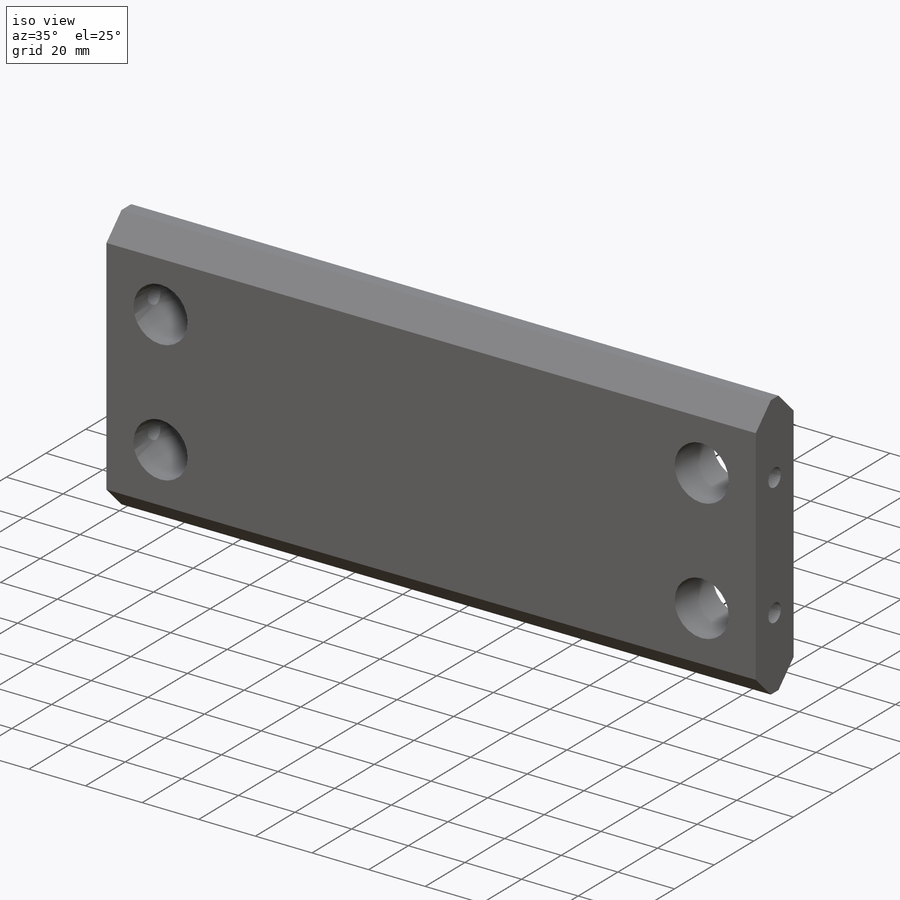
[diagram: iso view]
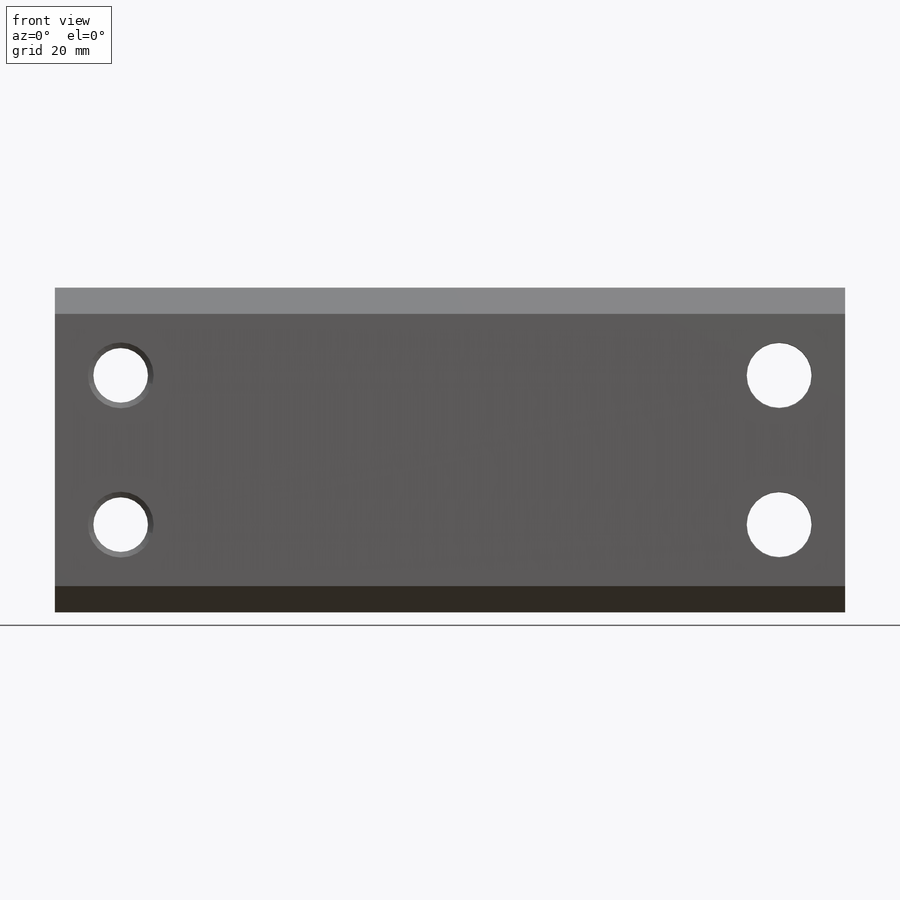
[diagram: front view]
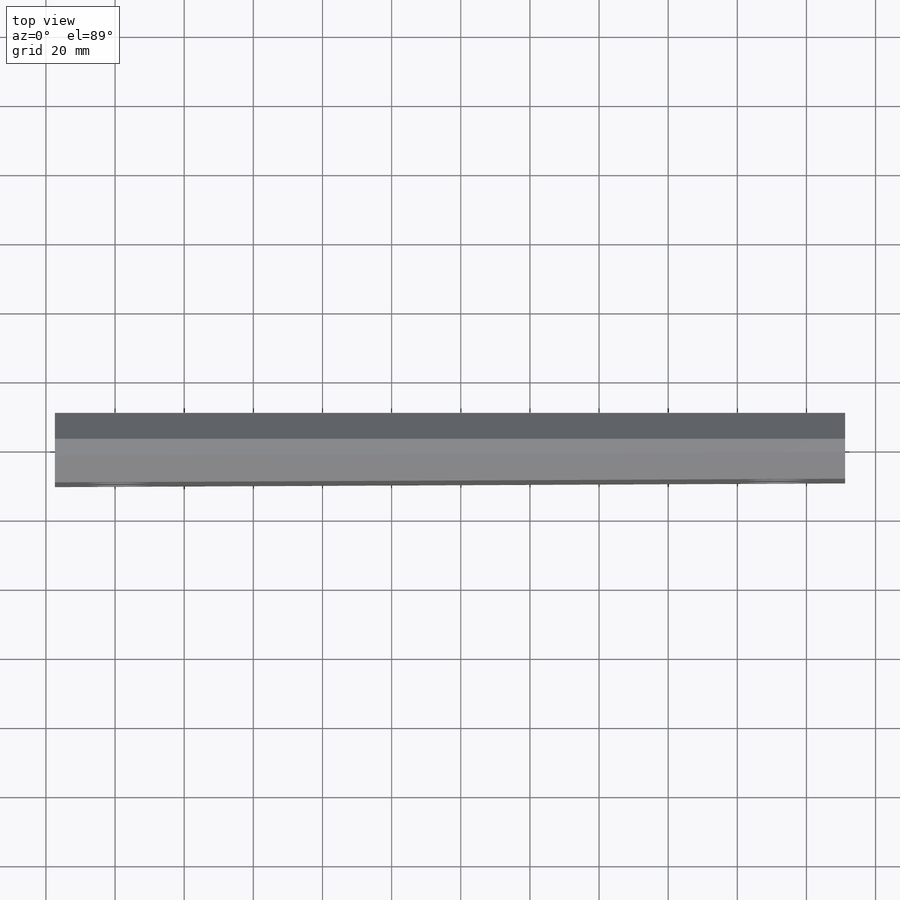
[diagram: top view]
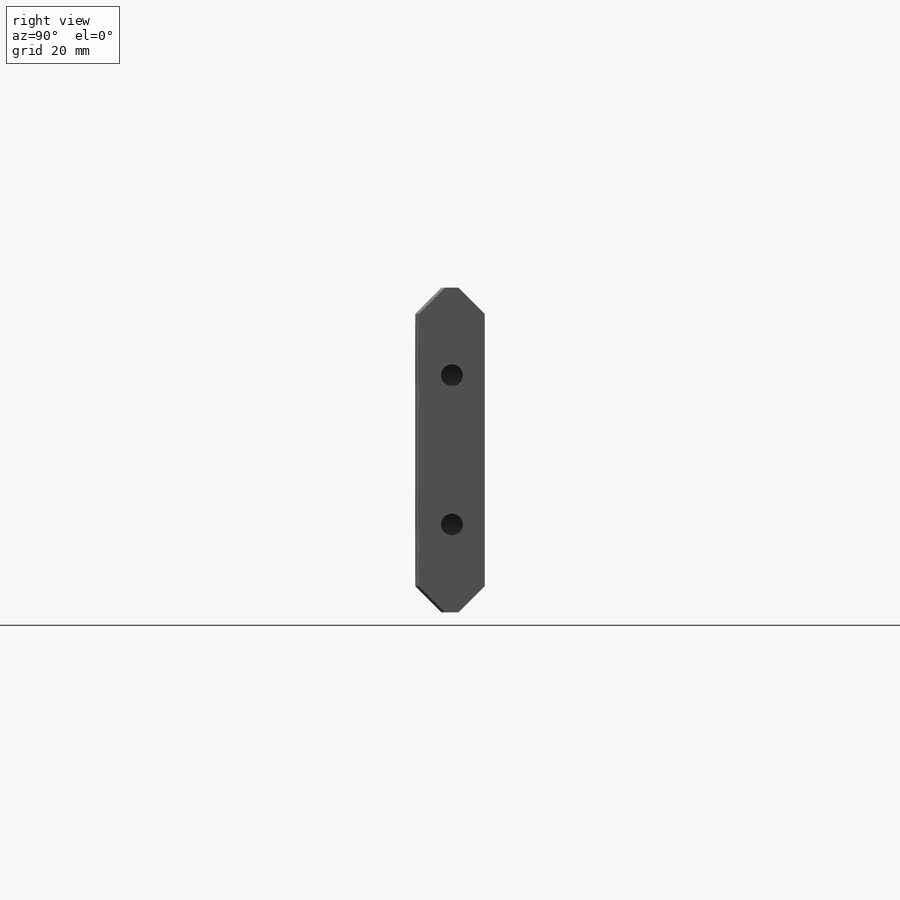
[diagram: right view]
SOLIDWORKS PART (.sldprt)
format: sldprt  version: not decoded by parser v0  size: 451,072 bytes
history: native  units: mm
features: sketch x7, hole x3, material x1, extrude x1, chamfer x1, mirror x1 (+11 scaffold rows collapsed)
feature tree (25):
  scaffold x11  (default folders/planes/origin — collapsed)
  material  "Pine"
  sketch  "3DSketch2"  dims[c1.D1=228.6mm c1.D2=19.05mm c1.D3=~27.209542mm c1.D5=33.3375mm c1.D4=~45.600197mm c2.D3=60.325mm c2.D5=~7.897267mm c2.D6=~2.432543mm c2.D7=2.032mm c3.D3=228.6mm c3.D4=~20.116505mm c4.D4=90.0deg]
  extrude  "Boss-Extrude3"  Depth=93.98mm
  chamfer  "Chamfer1"  Distance=7.62mm Angle=45deg
  hole  "3/4 (0.75) Diameter Hole1"  Diameter=19.05mm Depth=19.05mm
  sketch  "Sketch4"  dims[D1=19.05mm D2=25.4mm D3=19.05mm D4=25.4mm]
  sketch  "Sketch3"  dims[hole-wizard template sketch: 47 standard entries collapsed; hole parameters kept: c15.Hole Depth=19.05mm c15.D3=~14.816244mm c15.Drill Angle=118.0deg]
  hole  "1/4 (0.25) Diameter Hole1"  Diameter=6.35mm Depth=19.05mm
  sketch  "Sketch6"  dims[D1=25.4mm D2=9.525mm]
  sketch  "Sketch5"  dims[hole-wizard template sketch: 47 standard entries collapsed; hole parameters kept: c15.Hole Depth=19.05mm c15.D3=~14.816244mm c15.Drill Angle=118.0deg]
  hole  "1/4 (0.25) Diameter Hole2"  Diameter=6.35mm Depth=19.05mm
  sketch  "Sketch8"  dims[D1=25.4mm D2=9.525mm]
  sketch  "Sketch7"  dims[hole-wizard template sketch: 47 standard entries collapsed; hole parameters kept: c15.Hole Depth=19.05mm c15.D3=~14.816244mm c15.Drill Angle=118.0deg]
  mirror  "Mirror9"
decode coverage: 12 of 13 modeling features carry decoded parameters
note: ~ marks probable driven/reference dimensions
note: suppression state not decoded; provenance and decode notes live in map.json
